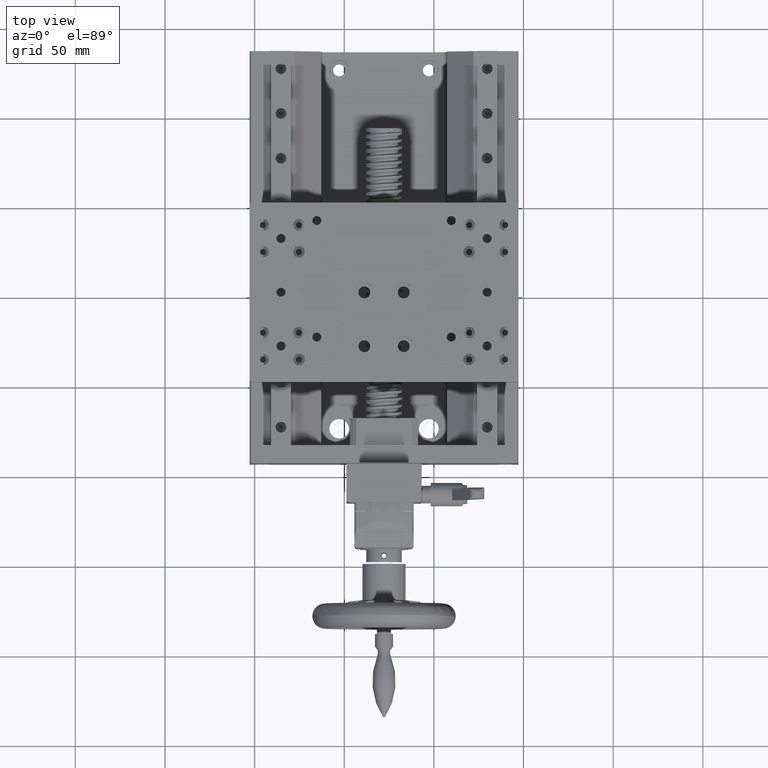
[diagram: clean part render]
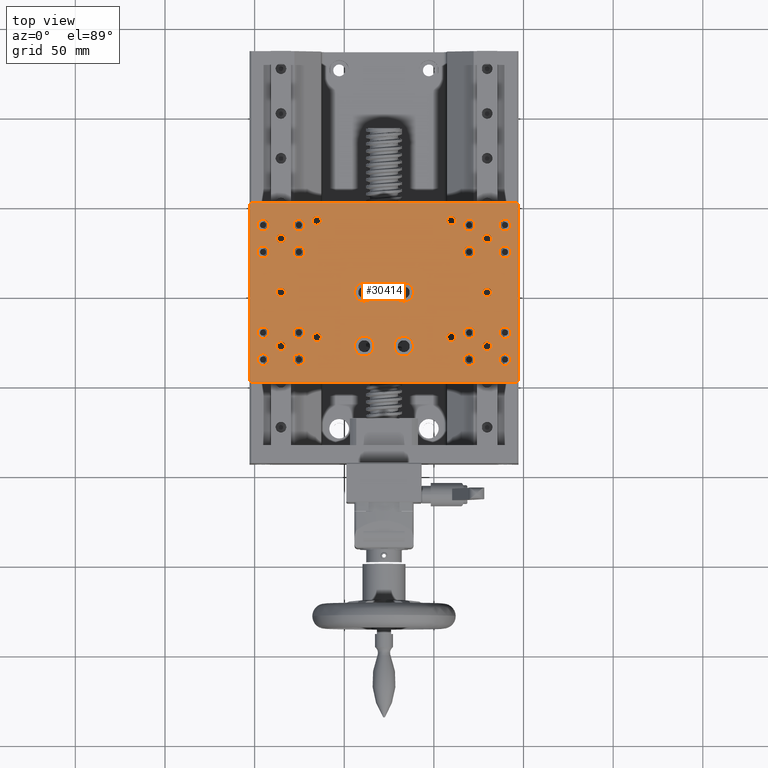
[diagram: same view with one face highlighted and labeled with its STEP entity id]
A machine part, top view. The second image highlights one B-rep face of the part: STEP entity #30414.
In plain terms, the highlighted planar face has unit normal (0, 0, 1).
Its self-contained STEP definition (entity closure, byte-faithful):
#92 = VERTEX_POINT ( 'NONE', #20707 ) ;
#177 = EDGE_CURVE ( 'NONE', #23864, #3393, #12563, .T. ) ;
#182 = CIRCLE ( 'NONE', #13025, 3.250000000000002665 ) ;
#252 = AXIS2_PLACEMENT_3D ( 'NONE', #22201, #3158, #27798 ) ;
#334 = CIRCLE ( 'NONE', #21937, 5.499999999999991118 ) ;
#411 = ORIENTED_EDGE ( 'NONE', *, *, #23644, .T. ) ;
#444 = AXIS2_PLACEMENT_3D ( 'NONE', #793, #34679, #11971 ) ;
#457 = CIRCLE ( 'NONE', #20871, 2.499999999999974243 ) ;
#493 = EDGE_LOOP ( 'NONE', ( #34913, #21037 ) ) ;
#516 = DIRECTION ( 'NONE',  ( 3.452590796308460919E-15, 1.665334536937734318E-16, 1.000000000000000000 ) ) ;
#550 = CIRCLE ( 'NONE', #29101, 3.250000000000002665 ) ;
#569 = CARTESIAN_POINT ( 'NONE',  ( -85.32647947979999969, -15.54726459790860993, 44.50000000000066080 ) ) ;
#588 = DIRECTION ( 'NONE',  ( -4.270088556250598741E-15, -1.000000000000000000, 0.000000000000000000 ) ) ;
#647 = DIRECTION ( 'NONE',  ( -3.452590796308460919E-15, -1.665334536937734318E-16, -1.000000000000000000 ) ) ;
#652 = CARTESIAN_POINT ( 'NONE',  ( 29.67352052019977648, -78.04726459790897763, 44.50000000000028422 ) ) ;
#705 = AXIS2_PLACEMENT_3D ( 'NONE', #3784, #6902, #18039 ) ;
#737 = EDGE_CURVE ( 'NONE', #1396, #1171, #822, .T. ) ;
#753 = EDGE_LOOP ( 'NONE', ( #14878, #26463 ) ) ;
#783 = EDGE_CURVE ( 'NONE', #22916, #17105, #4912, .T. ) ;
#793 = CARTESIAN_POINT ( 'NONE',  ( -95.32647947980005654, -25.54726459790854776, 44.50000000000070344 ) ) ;
#815 = EDGE_CURVE ( 'NONE', #6802, #24983, #25304, .T. ) ;
#822 = CIRCLE ( 'NONE', #11927, 2.499999999999974243 ) ;
#931 = CARTESIAN_POINT ( 'NONE',  ( -16.82647947980011338, -42.54726459790883553, 44.50000000000044054 ) ) ;
#1026 = DIRECTION ( 'NONE',  ( -3.452590796308460919E-15, -1.665334536937734318E-16, -1.000000000000000000 ) ) ;
#1037 = EDGE_LOOP ( 'NONE', ( #27544, #26277 ) ) ;
#1085 = VERTEX_POINT ( 'NONE', #2914 ) ;
#1105 = CIRCLE ( 'NONE', #18612, 2.499999999999974243 ) ;
#1130 = ORIENTED_EDGE ( 'NONE', *, *, #12414, .F. ) ;
#1137 = CARTESIAN_POINT ( 'NONE',  ( 39.67352052019978714, -70.54726459790900606, 44.50000000000024869 ) ) ;
#1171 = VERTEX_POINT ( 'NONE', #22650 ) ;
#1215 = DIRECTION ( 'NONE',  ( 3.452590796308460919E-15, 1.665334536937734318E-16, 1.000000000000000000 ) ) ;
#1288 = ORIENTED_EDGE ( 'NONE', *, *, #27860, .T. ) ;
#1301 = LINE ( 'NONE', #32095, #18492 ) ;
#1309 = VERTEX_POINT ( 'NONE', #569 ) ;
#1396 = VERTEX_POINT ( 'NONE', #6072 ) ;
#1463 = ORIENTED_EDGE ( 'NONE', *, *, #7274, .T. ) ;
#1519 = DIRECTION ( 'NONE',  ( -3.784851220313044991E-15, -1.000000000000000000, 0.000000000000000000 ) ) ;
#1538 = CIRCLE ( 'NONE', #33512, 3.250000000000002665 ) ;
#1568 = ORIENTED_EDGE ( 'NONE', *, *, #19232, .F. ) ;
#1689 = DIRECTION ( 'NONE',  ( 3.486929317224867175E-15, 1.000000000000000000, -1.665334536937734811E-16 ) ) ;
#1735 = AXIS2_PLACEMENT_3D ( 'NONE', #8753, #30933, #11133 ) ;
#1768 = DIRECTION ( 'NONE',  ( 5.551115123125840289E-15, 1.000000000000000000, 0.000000000000000000 ) ) ;
#1957 = CARTESIAN_POINT ( 'NONE',  ( -85.32647947980001391, -18.04726459790858328, 44.50000000000066080 ) ) ;
#2057 = EDGE_LOOP ( 'NONE', ( #11082, #25567 ) ) ;
#2058 = DIRECTION ( 'NONE',  ( 3.452590796308460919E-15, 1.665334536937734318E-16, 1.000000000000000000 ) ) ;
#2069 = CARTESIAN_POINT ( 'NONE',  ( -75.32647947980019865, -70.54726459790860815, 44.50000000000064659 ) ) ;
#2088 = FACE_BOUND ( 'NONE', #12474, .T. ) ;
#2097 = AXIS2_PLACEMENT_3D ( 'NONE', #1957, #7636, #1768 ) ;
#2102 = ORIENTED_EDGE ( 'NONE', *, *, #35415, .T. ) ;
#2106 = DIRECTION ( 'NONE',  ( 3.469446951953650082E-15, 1.000000000000000000, 0.000000000000000000 ) ) ;
#2176 = EDGE_CURVE ( 'NONE', #29140, #26174, #334, .T. ) ;
#2178 = CARTESIAN_POINT ( 'NONE',  ( 39.67352052020000031, -10.54726459790902204, 44.50000000000024158 ) ) ;
#2192 = CIRCLE ( 'NONE', #4499, 2.499999999999974243 ) ;
#2252 = AXIS2_PLACEMENT_3D ( 'NONE', #24468, #32430, #7118 ) ;
#2324 = DIRECTION ( 'NONE',  ( -3.486929317224867175E-15, -1.000000000000000000, 1.665334536937734811E-16 ) ) ;
#2579 = AXIS2_PLACEMENT_3D ( 'NONE', #14777, #15465, #28252 ) ;
#2625 = EDGE_CURVE ( 'NONE', #7215, #9361, #31210, .T. ) ;
#2670 = CIRCLE ( 'NONE', #2097, 2.499999999999974243 ) ;
#2721 = CARTESIAN_POINT ( 'NONE',  ( -65.32647947980021286, -73.04726459790865079, 44.50000000000060396 ) ) ;
#2731 = CARTESIAN_POINT ( 'NONE',  ( -75.32647947980004233, -25.54726459790861881, 44.50000000000063949 ) ) ;
#2803 = EDGE_CURVE ( 'NONE', #23562, #18090, #30074, .T. ) ;
#2845 = CIRCLE ( 'NONE', #444, 3.250000000000002665 ) ;
#2914 = CARTESIAN_POINT ( 'NONE',  ( 29.67352052019989372, -45.54726459790901316, 44.50000000000027711 ) ) ;
#3037 = CARTESIAN_POINT ( 'NONE',  ( -38.82647947980021286, -72.54726459790875026, 44.50000000000051870 ) ) ;
#3094 = LINE ( 'NONE', #31159, #22961 ) ;
#3111 = AXIS2_PLACEMENT_3D ( 'NONE', #19343, #22795, #8383 ) ;
#3158 = DIRECTION ( 'NONE',  ( 3.452590796308460919E-15, 1.665334536937734318E-16, 1.000000000000000000 ) ) ;
#3193 = CIRCLE ( 'NONE', #7895, 3.250000000000002665 ) ;
#3230 = DIRECTION ( 'NONE',  ( -1.000000000000000000, 3.478907848654647380E-15, 3.420639147677696500E-15 ) ) ;
#3245 = EDGE_CURVE ( 'NONE', #16515, #15100, #5581, .T. ) ;
#3262 = CARTESIAN_POINT ( 'NONE',  ( -102.8264794798002981, -97.04726459319657295, 44.50000000000073896 ) ) ;
#3263 = EDGE_LOOP ( 'NONE', ( #35372, #4449 ) ) ;
#3301 = DIRECTION ( 'NONE',  ( 3.452590796308460919E-15, 1.665334536937734318E-16, 1.000000000000000000 ) ) ;
#3368 = ORIENTED_EDGE ( 'NONE', *, *, #11756, .F. ) ;
#3393 = VERTEX_POINT ( 'NONE', #11022 ) ;
#3399 = CARTESIAN_POINT ( 'NONE',  ( 39.67352052019996478, -22.29726459790901316, 44.50000000000024158 ) ) ;
#3519 = CARTESIAN_POINT ( 'NONE',  ( -85.32647947980026970, -80.54726459790856552, 44.50000000000066791 ) ) ;
#3755 = DIRECTION ( 'NONE',  ( 3.452590796308460919E-15, 1.665334536937734318E-16, 1.000000000000000000 ) ) ;
#3784 = CARTESIAN_POINT ( 'NONE',  ( -75.32647947979999969, -10.54726459790861881, 44.50000000000063949 ) ) ;
#3814 = CARTESIAN_POINT ( 'NONE',  ( -16.82647947980012049, -48.04726459790882132, 44.50000000000044054 ) ) ;
#3864 = ORIENTED_EDGE ( 'NONE', *, *, #16947, .F. ) ;
#3959 = CARTESIAN_POINT ( 'NONE',  ( -95.32647947980002812, -13.79726459790855309, 44.50000000000069633 ) ) ;
#3974 = VERTEX_POINT ( 'NONE', #10984 ) ;
#4013 = EDGE_CURVE ( 'NONE', #23818, #14882, #1105, .T. ) ;
#4166 = DIRECTION ( 'NONE',  ( 3.452590796308460919E-15, 1.665334536937734318E-16, 1.000000000000000000 ) ) ;
#4279 = ORIENTED_EDGE ( 'NONE', *, *, #11538, .F. ) ;
#4306 = CARTESIAN_POINT ( 'NONE',  ( -38.82647947980024838, -83.54726459790873605, 44.50000000000051870 ) ) ;
#4392 = DIRECTION ( 'NONE',  ( 3.452590796308460919E-15, 1.665334536937734318E-16, 1.000000000000000000 ) ) ;
#4424 = VERTEX_POINT ( 'NONE', #14141 ) ;
#4449 = ORIENTED_EDGE ( 'NONE', *, *, #5882, .F. ) ;
#4456 = FACE_BOUND ( 'NONE', #15972, .T. ) ;
#4499 = AXIS2_PLACEMENT_3D ( 'NONE', #2721, #27703, #27345 ) ;
#4531 = VECTOR ( 'NONE', #3230, 1000.000000000000000 ) ;
#4716 = EDGE_CURVE ( 'NONE', #7270, #25283, #550, .T. ) ;
#4837 = ORIENTED_EDGE ( 'NONE', *, *, #14957, .F. ) ;
#4894 = AXIS2_PLACEMENT_3D ( 'NONE', #10717, #32914, #19140 ) ;
#4912 = CIRCLE ( 'NONE', #12517, 2.499999999999974243 ) ;
#4993 = CARTESIAN_POINT ( 'NONE',  ( -75.32647947979998548, -7.297264597908616146, 44.50000000000063949 ) ) ;
#5013 = FACE_BOUND ( 'NONE', #753, .T. ) ;
#5044 = CARTESIAN_POINT ( 'NONE',  ( -65.32647947979997127, -5.547264597908677430, 44.50000000000059686 ) ) ;
#5177 = CARTESIAN_POINT ( 'NONE',  ( 39.67352052019978714, -70.54726459790900606, 44.50000000000024869 ) ) ;
#5200 = DIRECTION ( 'NONE',  ( 3.452590796308460919E-15, 1.665334536937734318E-16, 1.000000000000000000 ) ) ;
#5203 = AXIS2_PLACEMENT_3D ( 'NONE', #9914, #17574, #34094 ) ;
#5214 = FACE_OUTER_BOUND ( 'NONE', #11031, .T. ) ;
#5386 = DIRECTION ( 'NONE',  ( 0.7071067811865500152, 0.7071067811865451302, -2.536514071716354973E-15 ) ) ;
#5470 = DIRECTION ( 'NONE',  ( 0.7071067811865451302, -0.7071067811865500152, -2.301000202913787996E-15 ) ) ;
#5499 = EDGE_CURVE ( 'NONE', #15195, #21919, #20451, .T. ) ;
#5536 = DIRECTION ( 'NONE',  ( -4.270088556250598741E-15, -1.000000000000000000, 0.000000000000000000 ) ) ;
#5581 = CIRCLE ( 'NONE', #14887, 5.499999999999984013 ) ;
#5734 = ORIENTED_EDGE ( 'NONE', *, *, #31265, .F. ) ;
#5797 = AXIS2_PLACEMENT_3D ( 'NONE', #28528, #31414, #29224 ) ;
#5831 = CARTESIAN_POINT ( 'NONE',  ( 47.17352052020003583, 0.9527353973790078090, 44.50000000000021316 ) ) ;
#5882 = EDGE_CURVE ( 'NONE', #9361, #7215, #9276, .T. ) ;
#6072 = CARTESIAN_POINT ( 'NONE',  ( 29.67352052019975162, -80.54726459790894921, 44.50000000000028422 ) ) ;
#6136 = VERTEX_POINT ( 'NONE', #3262 ) ;
#6144 = EDGE_CURVE ( 'NONE', #1085, #8797, #457, .T. ) ;
#6229 = DIRECTION ( 'NONE',  ( -0.7071067811865500152, -0.7071067811865451302, 2.536514071716354973E-15 ) ) ;
#6252 = DIRECTION ( 'NONE',  ( -4.270088556250598741E-15, -1.000000000000000000, 0.000000000000000000 ) ) ;
#6510 = ORIENTED_EDGE ( 'NONE', *, *, #737, .T. ) ;
#6545 = CARTESIAN_POINT ( 'NONE',  ( 39.67352052020000741, -7.297264597909018491, 44.50000000000024158 ) ) ;
#6776 = DIRECTION ( 'NONE',  ( -4.270088556250598741E-15, -1.000000000000000000, 0.000000000000000000 ) ) ;
#6802 = VERTEX_POINT ( 'NONE', #33847 ) ;
#6902 = DIRECTION ( 'NONE',  ( 3.452590796308460919E-15, 1.665334536937734318E-16, 1.000000000000000000 ) ) ;
#6918 = AXIS2_PLACEMENT_3D ( 'NONE', #25738, #3301, #6252 ) ;
#6979 = AXIS2_PLACEMENT_3D ( 'NONE', #10169, #20945, #7062 ) ;
#7009 = CARTESIAN_POINT ( 'NONE',  ( -75.32647947980025549, -85.54726459790862236, 44.50000000000065370 ) ) ;
#7062 = DIRECTION ( 'NONE',  ( 5.551115123125840289E-15, 1.000000000000000000, 0.000000000000000000 ) ) ;
#7118 = DIRECTION ( 'NONE',  ( 4.163336342344379625E-15, 1.000000000000000000, 0.000000000000000000 ) ) ;
#7205 = AXIS2_PLACEMENT_3D ( 'NONE', #33560, #25244, #588 ) ;
#7208 = EDGE_LOOP ( 'NONE', ( #30131, #10266 ) ) ;
#7209 = LINE ( 'NONE', #12532, #4531 ) ;
#7211 = EDGE_CURVE ( 'NONE', #31684, #92, #23894, .T. ) ;
#7215 = VERTEX_POINT ( 'NONE', #4306 ) ;
#7227 = CARTESIAN_POINT ( 'NONE',  ( -75.32647947980005654, -28.79726459790862236, 44.50000000000063949 ) ) ;
#7270 = VERTEX_POINT ( 'NONE', #35090 ) ;
#7274 = EDGE_CURVE ( 'NONE', #1309, #8134, #31983, .T. ) ;
#7302 = DIRECTION ( 'NONE',  ( -4.270088556250598741E-15, -1.000000000000000000, 0.000000000000000000 ) ) ;
#7394 = FACE_BOUND ( 'NONE', #33530, .T. ) ;
#7494 = AXIS2_PLACEMENT_3D ( 'NONE', #32213, #16043, #27124 ) ;
#7497 = CARTESIAN_POINT ( 'NONE',  ( 39.67352052019977293, -73.79726459790902027, 44.50000000000024869 ) ) ;
#7636 = DIRECTION ( 'NONE',  ( -3.452590796308460919E-15, -1.665334536937734318E-16, -1.000000000000000000 ) ) ;
#7650 = CARTESIAN_POINT ( 'NONE',  ( 29.67352052019996123, -20.54726459790895632, 44.50000000000027001 ) ) ;
#7757 = PLANE ( 'NONE',  #31416 ) ;
#7796 = EDGE_CURVE ( 'NONE', #4424, #8289, #27966, .T. ) ;
#7820 = AXIS2_PLACEMENT_3D ( 'NONE', #2178, #10044, #7302 ) ;
#7895 = AXIS2_PLACEMENT_3D ( 'NONE', #16980, #33495, #17337 ) ;
#7930 = CIRCLE ( 'NONE', #26548, 2.499999999999974243 ) ;
#7941 = DIRECTION ( 'NONE',  ( 3.452590796308460919E-15, 1.665334536937614509E-16, 1.000000000000000000 ) ) ;
#7949 = EDGE_CURVE ( 'NONE', #19550, #11981, #14871, .T. ) ;
#7954 = EDGE_CURVE ( 'NONE', #22725, #32009, #35774, .T. ) ;
#7981 = CARTESIAN_POINT ( 'NONE',  ( -101.8264794750879929, 1.952735402091475336, 44.50000000000071765 ) ) ;
#8029 = VERTEX_POINT ( 'NONE', #3399 ) ;
#8132 = CARTESIAN_POINT ( 'NONE',  ( 39.67352052019995767, -25.54726459790901671, 44.50000000000024158 ) ) ;
#8134 = VERTEX_POINT ( 'NONE', #35264 ) ;
#8154 = CARTESIAN_POINT ( 'NONE',  ( 39.67352052020000031, -10.54726459790902204, 44.50000000000024158 ) ) ;
#8214 = VERTEX_POINT ( 'NONE', #7227 ) ;
#8289 = VERTEX_POINT ( 'NONE', #5044 ) ;
#8326 = CIRCLE ( 'NONE', #705, 3.250000000000002665 ) ;
#8369 = CARTESIAN_POINT ( 'NONE',  ( 9.673520520199796024, -70.54726459790894921, 44.50000000000034817 ) ) ;
#8383 = DIRECTION ( 'NONE',  ( -3.202566417187948859E-15, -1.000000000000000000, 0.000000000000000000 ) ) ;
#8614 = ORIENTED_EDGE ( 'NONE', *, *, #25411, .T. ) ;
#8687 = DIRECTION ( 'NONE',  ( 3.452590796308460919E-15, 1.665334536937734318E-16, 1.000000000000000000 ) ) ;
#8714 = CARTESIAN_POINT ( 'NONE',  ( 29.67352052019999675, -15.54726459790900783, 44.50000000000027001 ) ) ;
#8753 = CARTESIAN_POINT ( 'NONE',  ( 9.673520520199787143, -73.04726459790892079, 44.50000000000034817 ) ) ;
#8797 = VERTEX_POINT ( 'NONE', #10612 ) ;
#8809 = DIRECTION ( 'NONE',  ( 3.452590796308460919E-15, 1.665334536937734318E-16, 1.000000000000000000 ) ) ;
#8841 = EDGE_CURVE ( 'NONE', #20768, #8214, #18466, .T. ) ;
#8901 = CARTESIAN_POINT ( 'NONE',  ( -38.82647947980012049, -48.04726459790875026, 44.50000000000051159 ) ) ;
#8973 = ORIENTED_EDGE ( 'NONE', *, *, #7796, .T. ) ;
#9130 = EDGE_CURVE ( 'NONE', #30317, #13504, #14404, .T. ) ;
#9276 = CIRCLE ( 'NONE', #13945, 5.499999999999991118 ) ;
#9315 = VERTEX_POINT ( 'NONE', #22415 ) ;
#9361 = VERTEX_POINT ( 'NONE', #3037 ) ;
#9407 = EDGE_LOOP ( 'NONE', ( #23735, #1568 ) ) ;
#9434 = CIRCLE ( 'NONE', #25736, 2.499999999999974243 ) ;
#9468 = DIRECTION ( 'NONE',  ( -4.270088556250598741E-15, -1.000000000000000000, 0.000000000000000000 ) ) ;
#9472 = VERTEX_POINT ( 'NONE', #8369 ) ;
#9576 = EDGE_LOOP ( 'NONE', ( #3368, #33699 ) ) ;
#9638 = AXIS2_PLACEMENT_3D ( 'NONE', #27440, #22027, #2106 ) ;
#9738 = EDGE_LOOP ( 'NONE', ( #1463, #29330 ) ) ;
#9746 = LINE ( 'NONE', #26505, #31574 ) ;
#9911 = CARTESIAN_POINT ( 'NONE',  ( 19.67352052020001452, -7.297264597908949213, 44.50000000000030553 ) ) ;
#9914 = CARTESIAN_POINT ( 'NONE',  ( 19.67352052019995767, -25.54726459790894921, 44.50000000000031264 ) ) ;
#9933 = EDGE_CURVE ( 'NONE', #34446, #14693, #1301, .T. ) ;
#9950 = EDGE_LOOP ( 'NONE', ( #26135, #32631 ) ) ;
#9959 = AXIS2_PLACEMENT_3D ( 'NONE', #2069, #13223, #24350 ) ;
#10044 = DIRECTION ( 'NONE',  ( 3.452590796308460919E-15, 1.665334536937734318E-16, 1.000000000000000000 ) ) ;
#10058 = DIRECTION ( 'NONE',  ( 5.551115123125840289E-15, 1.000000000000000000, 0.000000000000000000 ) ) ;
#10125 = VERTEX_POINT ( 'NONE', #25919 ) ;
#10132 = FACE_BOUND ( 'NONE', #9738, .T. ) ;
#10169 = CARTESIAN_POINT ( 'NONE',  ( -85.32647947980001391, -18.04726459790858328, 44.50000000000066080 ) ) ;
#10171 = EDGE_CURVE ( 'NONE', #21521, #10363, #10422, .T. ) ;
#10212 = AXIS2_PLACEMENT_3D ( 'NONE', #12811, #34612, #17911 ) ;
#10214 = DIRECTION ( 'NONE',  ( 3.452590796308460919E-15, 1.665334536937734318E-16, 1.000000000000000000 ) ) ;
#10266 = ORIENTED_EDGE ( 'NONE', *, *, #2176, .F. ) ;
#10317 = FACE_BOUND ( 'NONE', #33494, .T. ) ;
#10363 = VERTEX_POINT ( 'NONE', #16634 ) ;
#10366 = EDGE_LOOP ( 'NONE', ( #25222, #22710 ) ) ;
#10422 = CIRCLE ( 'NONE', #6918, 3.250000000000002665 ) ;
#10503 = FACE_BOUND ( 'NONE', #31018, .T. ) ;
#10612 = CARTESIAN_POINT ( 'NONE',  ( 29.67352052019985820, -50.54726459790896342, 44.50000000000027711 ) ) ;
#10622 = VERTEX_POINT ( 'NONE', #7981 ) ;
#10646 = DIRECTION ( 'NONE',  ( -3.202566417187948859E-15, -1.000000000000000000, 0.000000000000000000 ) ) ;
#10658 = EDGE_CURVE ( 'NONE', #21247, #15374, #13936, .T. ) ;
#10671 = FACE_BOUND ( 'NONE', #22219, .T. ) ;
#10704 = ORIENTED_EDGE ( 'NONE', *, *, #6144, .T. ) ;
#10717 = CARTESIAN_POINT ( 'NONE',  ( -75.32647947980004233, -25.54726459790861881, 44.50000000000063949 ) ) ;
#10742 = CARTESIAN_POINT ( 'NONE',  ( -38.82647947980022707, -78.04726459790873605, 44.50000000000051870 ) ) ;
#10762 = EDGE_CURVE ( 'NONE', #18089, #24457, #19770, .T. ) ;
#10805 = CIRCLE ( 'NONE', #32358, 3.250000000000002665 ) ;
#10817 = EDGE_CURVE ( 'NONE', #3393, #23864, #2845, .T. ) ;
#10917 = AXIS2_PLACEMENT_3D ( 'NONE', #652, #11465, #28557 ) ;
#10984 = CARTESIAN_POINT ( 'NONE',  ( -95.32647947980022707, -73.79726459790855131, 44.50000000000071054 ) ) ;
#11022 = CARTESIAN_POINT ( 'NONE',  ( -95.32647947980005654, -22.29726459790854776, 44.50000000000070344 ) ) ;
#11031 = EDGE_LOOP ( 'NONE', ( #14727, #1288, #21355, #18777, #411, #17528, #26175, #8614 ) ) ;
#11048 = DIRECTION ( 'NONE',  ( -4.270088556250598741E-15, -1.000000000000000000, 0.000000000000000000 ) ) ;
#11062 = ORIENTED_EDGE ( 'NONE', *, *, #32868, .T. ) ;
#11064 = CARTESIAN_POINT ( 'NONE',  ( -38.82647947980014180, -53.54726459790873605, 44.50000000000051159 ) ) ;
#11082 = ORIENTED_EDGE ( 'NONE', *, *, #177, .F. ) ;
#11113 = DIRECTION ( 'NONE',  ( 3.452590796308460919E-15, 1.665334536937734318E-16, 1.000000000000000000 ) ) ;
#11133 = DIRECTION ( 'NONE',  ( 3.469446951953650082E-15, 1.000000000000000000, 0.000000000000000000 ) ) ;
#11270 = EDGE_CURVE ( 'NONE', #24983, #6802, #30183, .T. ) ;
#11291 = CARTESIAN_POINT ( 'NONE',  ( -95.32647947980021286, -70.54726459790855131, 44.50000000000071054 ) ) ;
#11381 = CIRCLE ( 'NONE', #9638, 2.499999999999974243 ) ;
#11400 = CARTESIAN_POINT ( 'NONE',  ( 29.67352052019988307, -48.04726459790898474, 44.50000000000027711 ) ) ;
#11414 = CIRCLE ( 'NONE', #15505, 3.250000000000002665 ) ;
#11465 = DIRECTION ( 'NONE',  ( -3.452590796308460919E-15, -1.665334536937734318E-16, -1.000000000000000000 ) ) ;
#11538 = EDGE_CURVE ( 'NONE', #92, #31684, #23283, .T. ) ;
#11560 = AXIS2_PLACEMENT_3D ( 'NONE', #26060, #20784, #26413 ) ;
#11604 = CIRCLE ( 'NONE', #5203, 3.250000000000002665 ) ;
#11660 = AXIS2_PLACEMENT_3D ( 'NONE', #34735, #1215, #28920 ) ;
#11756 = EDGE_CURVE ( 'NONE', #10125, #23287, #1538, .T. ) ;
#11759 = VERTEX_POINT ( 'NONE', #4993 ) ;
#11779 = CARTESIAN_POINT ( 'NONE',  ( -75.32647947980002812, -22.29726459790861526, 44.50000000000063949 ) ) ;
#11824 = AXIS2_PLACEMENT_3D ( 'NONE', #5177, #18683, #16314 ) ;
#11842 = VERTEX_POINT ( 'NONE', #35035 ) ;
#11860 = EDGE_CURVE ( 'NONE', #24457, #18089, #11381, .T. ) ;
#11927 = AXIS2_PLACEMENT_3D ( 'NONE', #33848, #12065, #25540 ) ;
#11971 = DIRECTION ( 'NONE',  ( -4.270088556250598741E-15, -1.000000000000000000, 0.000000000000000000 ) ) ;
#11981 = VERTEX_POINT ( 'NONE', #11064 ) ;
#11985 = EDGE_LOOP ( 'NONE', ( #10704, #14368 ) ) ;
#12008 = CARTESIAN_POINT ( 'NONE',  ( 19.67352052019980491, -70.54726459790894921, 44.50000000000031974 ) ) ;
#12019 = DIRECTION ( 'NONE',  ( -3.784851220313039469E-15, -1.000000000000000000, 0.000000000000000000 ) ) ;
#12065 = DIRECTION ( 'NONE',  ( -3.452590796308460919E-15, -1.665334536937734318E-16, -1.000000000000000000 ) ) ;
#12093 = CARTESIAN_POINT ( 'NONE',  ( -95.32647947980007075, -28.79726459790855131, 44.50000000000070344 ) ) ;
#12371 = AXIS2_PLACEMENT_3D ( 'NONE', #27115, #26814, #10058 ) ;
#12414 = EDGE_CURVE ( 'NONE', #8029, #24584, #11414, .T. ) ;
#12474 = EDGE_LOOP ( 'NONE', ( #12787, #3864 ) ) ;
#12517 = AXIS2_PLACEMENT_3D ( 'NONE', #29273, #22645, #18378 ) ;
#12532 = CARTESIAN_POINT ( 'NONE',  ( 47.17352052020004294, 1.952735402090961747, 44.50000000000021316 ) ) ;
#12563 = CIRCLE ( 'NONE', #30577, 3.250000000000002665 ) ;
#12787 = ORIENTED_EDGE ( 'NONE', *, *, #21388, .F. ) ;
#12811 = CARTESIAN_POINT ( 'NONE',  ( -65.32647947979998548, -8.047264597908650785, 44.50000000000059686 ) ) ;
#12870 = CIRCLE ( 'NONE', #29111, 3.250000000000002665 ) ;
#12877 = FACE_BOUND ( 'NONE', #7208, .T. ) ;
#13025 = AXIS2_PLACEMENT_3D ( 'NONE', #24521, #35574, #10646 ) ;
#13073 = CIRCLE ( 'NONE', #7820, 3.250000000000002665 ) ;
#13097 = DIRECTION ( 'NONE',  ( -3.452590796308460919E-15, -1.665334536937734318E-16, -1.000000000000000000 ) ) ;
#13223 = DIRECTION ( 'NONE',  ( 3.452590796308460919E-15, 1.665334536937734318E-16, 1.000000000000000000 ) ) ;
#13244 = FACE_BOUND ( 'NONE', #10366, .T. ) ;
#13451 = CARTESIAN_POINT ( 'NONE',  ( 9.673520520200025175, -5.547264597908940331, 44.50000000000034106 ) ) ;
#13504 = VERTEX_POINT ( 'NONE', #14855 ) ;
#13614 = EDGE_CURVE ( 'NONE', #25283, #7270, #182, .T. ) ;
#13636 = VERTEX_POINT ( 'NONE', #27933 ) ;
#13637 = CIRCLE ( 'NONE', #7205, 3.250000000000002665 ) ;
#13661 = CIRCLE ( 'NONE', #3111, 3.250000000000002665 ) ;
#13736 = DIRECTION ( 'NONE',  ( 1.000000000000000000, -3.478907848654647380E-15, -3.420639147677696500E-15 ) ) ;
#13879 = CIRCLE ( 'NONE', #11560, 3.250000000000002665 ) ;
#13893 = DIRECTION ( 'NONE',  ( 3.452590796308460919E-15, 1.665334536937734318E-16, 1.000000000000000000 ) ) ;
#13936 = CIRCLE ( 'NONE', #27306, 3.250000000000002665 ) ;
#13945 = AXIS2_PLACEMENT_3D ( 'NONE', #29360, #4392, #15558 ) ;
#14079 = EDGE_CURVE ( 'NONE', #11759, #29607, #8326, .T. ) ;
#14116 = EDGE_LOOP ( 'NONE', ( #24121, #16871 ) ) ;
#14141 = CARTESIAN_POINT ( 'NONE',  ( -65.32647947980001391, -10.54726459790862592, 44.50000000000059686 ) ) ;
#14315 = CIRCLE ( 'NONE', #25925, 2.499999999999974243 ) ;
#14350 = EDGE_CURVE ( 'NONE', #29832, #26381, #15291, .T. ) ;
#14368 = ORIENTED_EDGE ( 'NONE', *, *, #30989, .T. ) ;
#14404 = CIRCLE ( 'NONE', #20807, 3.250000000000002665 ) ;
#14591 = CARTESIAN_POINT ( 'NONE',  ( -16.82647947980022707, -78.04726459790882132, 44.50000000000044054 ) ) ;
#14693 = VERTEX_POINT ( 'NONE', #35113 ) ;
#14727 = ORIENTED_EDGE ( 'NONE', *, *, #14767, .T. ) ;
#14767 = EDGE_CURVE ( 'NONE', #34963, #6136, #18971, .T. ) ;
#14777 = CARTESIAN_POINT ( 'NONE',  ( 19.67352052019974806, -85.54726459790896342, 44.50000000000031974 ) ) ;
#14855 = CARTESIAN_POINT ( 'NONE',  ( 19.67352052019995767, -22.29726459790894566, 44.50000000000031264 ) ) ;
#14871 = CIRCLE ( 'NONE', #29975, 5.499999999999984013 ) ;
#14878 = ORIENTED_EDGE ( 'NONE', *, *, #26944, .F. ) ;
#14882 = VERTEX_POINT ( 'NONE', #18546 ) ;
#14887 = AXIS2_PLACEMENT_3D ( 'NONE', #26337, #26521, #1519 ) ;
#14957 = EDGE_CURVE ( 'NONE', #11981, #19550, #16021, .T. ) ;
#15094 = DIRECTION ( 'NONE',  ( 5.551115123125840289E-15, 1.000000000000000000, 0.000000000000000000 ) ) ;
#15100 = VERTEX_POINT ( 'NONE', #28512 ) ;
#15195 = VERTEX_POINT ( 'NONE', #15403 ) ;
#15272 = ORIENTED_EDGE ( 'NONE', *, *, #15592, .T. ) ;
#15291 = CIRCLE ( 'NONE', #11824, 3.250000000000002665 ) ;
#15318 = DIRECTION ( 'NONE',  ( -3.202566417187948859E-15, -1.000000000000000000, 0.000000000000000000 ) ) ;
#15374 = VERTEX_POINT ( 'NONE', #6545 ) ;
#15403 = CARTESIAN_POINT ( 'NONE',  ( -75.32647947980021286, -73.79726459790860815, 44.50000000000064659 ) ) ;
#15465 = DIRECTION ( 'NONE',  ( 3.452590796308460919E-15, 1.665334536937734318E-16, 1.000000000000000000 ) ) ;
#15505 = AXIS2_PLACEMENT_3D ( 'NONE', #33710, #8809, #5536 ) ;
#15520 = ORIENTED_EDGE ( 'NONE', *, *, #4013, .T. ) ;
#15553 = AXIS2_PLACEMENT_3D ( 'NONE', #34166, #1026, #15094 ) ;
#15558 = DIRECTION ( 'NONE',  ( -3.784851220313039469E-15, -1.000000000000000000, 0.000000000000000000 ) ) ;
#15564 = AXIS2_PLACEMENT_3D ( 'NONE', #2731, #13893, #21741 ) ;
#15592 = EDGE_CURVE ( 'NONE', #25775, #9472, #14315, .T. ) ;
#15619 = FACE_BOUND ( 'NONE', #21483, .T. ) ;
#15920 = ORIENTED_EDGE ( 'NONE', *, *, #11860, .T. ) ;
#15972 = EDGE_LOOP ( 'NONE', ( #24455, #8973 ) ) ;
#16021 = CIRCLE ( 'NONE', #252, 5.499999999999984013 ) ;
#16043 = DIRECTION ( 'NONE',  ( 3.452590796308460919E-15, 1.665334536937734318E-16, 1.000000000000000000 ) ) ;
#16165 = CARTESIAN_POINT ( 'NONE',  ( -27.82647947980012049, -48.04726459790878579, 44.50000000000047606 ) ) ;
#16314 = DIRECTION ( 'NONE',  ( -4.270088556250598741E-15, -1.000000000000000000, 0.000000000000000000 ) ) ;
#16494 = EDGE_LOOP ( 'NONE', ( #4279, #33954 ) ) ;
#16515 = VERTEX_POINT ( 'NONE', #931 ) ;
#16596 = VECTOR ( 'NONE', #2324, 1000.000000000000000 ) ;
#16634 = CARTESIAN_POINT ( 'NONE',  ( -95.32647947979999969, -7.297264597908546868, 44.50000000000069633 ) ) ;
#16699 = EDGE_LOOP ( 'NONE', ( #15920, #35869 ) ) ;
#16715 = CARTESIAN_POINT ( 'NONE',  ( -85.32647947980022707, -78.04726459790859394, 44.50000000000066791 ) ) ;
#16844 = CARTESIAN_POINT ( 'NONE',  ( -85.32647947980011338, -45.54726459790860815, 44.50000000000066080 ) ) ;
#16871 = ORIENTED_EDGE ( 'NONE', *, *, #18478, .F. ) ;
#16932 = CARTESIAN_POINT ( 'NONE',  ( -16.82647947980021996, -72.54726459790883553, 44.50000000000044054 ) ) ;
#16947 = EDGE_CURVE ( 'NONE', #25722, #3974, #3193, .T. ) ;
#16980 = CARTESIAN_POINT ( 'NONE',  ( -95.32647947980021286, -70.54726459790855131, 44.50000000000071054 ) ) ;
#17002 = EDGE_CURVE ( 'NONE', #32387, #30243, #10805, .T. ) ;
#17073 = DIRECTION ( 'NONE',  ( 3.452590796308460919E-15, 1.665334536937734318E-16, 1.000000000000000000 ) ) ;
#17105 = VERTEX_POINT ( 'NONE', #7650 ) ;
#17256 = DIRECTION ( 'NONE',  ( -4.270088556250598741E-15, -1.000000000000000000, 0.000000000000000000 ) ) ;
#17337 = DIRECTION ( 'NONE',  ( -4.270088556250598741E-15, -1.000000000000000000, 0.000000000000000000 ) ) ;
#17487 = CARTESIAN_POINT ( 'NONE',  ( -95.32647947980021286, -67.29726459790855131, 44.50000000000071054 ) ) ;
#17528 = ORIENTED_EDGE ( 'NONE', *, *, #9933, .T. ) ;
#17569 = CARTESIAN_POINT ( 'NONE',  ( 39.67352052019973740, -88.79726459790902027, 44.50000000000025580 ) ) ;
#17574 = DIRECTION ( 'NONE',  ( 3.452590796308460919E-15, 1.665334536937734318E-16, 1.000000000000000000 ) ) ;
#17721 = CIRCLE ( 'NONE', #33947, 3.250000000000002665 ) ;
#17911 = DIRECTION ( 'NONE',  ( 5.551115123125840289E-15, 1.000000000000000000, 0.000000000000000000 ) ) ;
#18039 = DIRECTION ( 'NONE',  ( -4.270088556250598741E-15, -1.000000000000000000, 0.000000000000000000 ) ) ;
#18044 = ORIENTED_EDGE ( 'NONE', *, *, #30896, .F. ) ;
#18089 = VERTEX_POINT ( 'NONE', #32522 ) ;
#18090 = VERTEX_POINT ( 'NONE', #26364 ) ;
#18110 = AXIS2_PLACEMENT_3D ( 'NONE', #11400, #28502, #22717 ) ;
#18227 = EDGE_CURVE ( 'NONE', #11842, #28124, #33469, .T. ) ;
#18333 = ORIENTED_EDGE ( 'NONE', *, *, #19419, .T. ) ;
#18378 = DIRECTION ( 'NONE',  ( 4.163336342344379625E-15, 1.000000000000000000, 0.000000000000000000 ) ) ;
#18466 = CIRCLE ( 'NONE', #15564, 3.250000000000002665 ) ;
#18478 = EDGE_CURVE ( 'NONE', #21919, #15195, #20718, .T. ) ;
#18492 = VECTOR ( 'NONE', #29548, 1000.000000000000114 ) ;
#18506 = DIRECTION ( 'NONE',  ( -4.270088556250598741E-15, -1.000000000000000000, 0.000000000000000000 ) ) ;
#18520 = ORIENTED_EDGE ( 'NONE', *, *, #25213, .F. ) ;
#18528 = DIRECTION ( 'NONE',  ( -3.486929317224867175E-15, -1.000000000000000000, 1.665334536937734811E-16 ) ) ;
#18546 = CARTESIAN_POINT ( 'NONE',  ( -85.32647947980015601, -50.54726459790855841, 44.50000000000066080 ) ) ;
#18612 = AXIS2_PLACEMENT_3D ( 'NONE', #34222, #20085, #31502 ) ;
#18633 = CARTESIAN_POINT ( 'NONE',  ( -16.82647947980024483, -83.54726459790882132, 44.50000000000044054 ) ) ;
#18683 = DIRECTION ( 'NONE',  ( 3.452590796308460919E-15, 1.665334536937734318E-16, 1.000000000000000000 ) ) ;
#18777 = ORIENTED_EDGE ( 'NONE', *, *, #34699, .T. ) ;
#18893 = EDGE_CURVE ( 'NONE', #18090, #23562, #2192, .T. ) ;
#18905 = FACE_BOUND ( 'NONE', #22517, .T. ) ;
#18971 = LINE ( 'NONE', #32743, #16596 ) ;
#19025 = CIRCLE ( 'NONE', #26557, 3.250000000000002665 ) ;
#19029 = EDGE_CURVE ( 'NONE', #26174, #29140, #25500, .T. ) ;
#19140 = DIRECTION ( 'NONE',  ( -4.270088556250598741E-15, -1.000000000000000000, 0.000000000000000000 ) ) ;
#19231 = EDGE_CURVE ( 'NONE', #29607, #11759, #28416, .T. ) ;
#19232 = EDGE_CURVE ( 'NONE', #10363, #21521, #13879, .T. ) ;
#19273 = DIRECTION ( 'NONE',  ( 3.452590796308460919E-15, 1.665334536937734318E-16, 1.000000000000000000 ) ) ;
#19336 = EDGE_LOOP ( 'NONE', ( #22342, #22130 ) ) ;
#19343 = CARTESIAN_POINT ( 'NONE',  ( 19.67352052019980491, -70.54726459790894921, 44.50000000000031974 ) ) ;
#19419 = EDGE_CURVE ( 'NONE', #1171, #1396, #27192, .T. ) ;
#19550 = VERTEX_POINT ( 'NONE', #34337 ) ;
#19612 = CARTESIAN_POINT ( 'NONE',  ( 9.673520520199762274, -75.54726459790889237, 44.50000000000034817 ) ) ;
#19770 = CIRCLE ( 'NONE', #5797, 2.499999999999974243 ) ;
#19858 = DIRECTION ( 'NONE',  ( 3.469446951953650082E-15, 1.000000000000000000, 0.000000000000000000 ) ) ;
#19868 = EDGE_CURVE ( 'NONE', #23287, #10125, #19025, .T. ) ;
#20030 = DIRECTION ( 'NONE',  ( -3.452590796308460919E-15, -1.665334536937734318E-16, -1.000000000000000000 ) ) ;
#20085 = DIRECTION ( 'NONE',  ( -3.452590796308460919E-15, -1.665334536937734318E-16, -1.000000000000000000 ) ) ;
#20134 = ORIENTED_EDGE ( 'NONE', *, *, #4716, .F. ) ;
#20220 = DIRECTION ( 'NONE',  ( 3.452590796308460919E-15, 1.665334536937734318E-16, 1.000000000000000000 ) ) ;
#20248 = CARTESIAN_POINT ( 'NONE',  ( 39.67352052019979425, -67.29726459790900606, 44.50000000000024869 ) ) ;
#20258 = CARTESIAN_POINT ( 'NONE',  ( 19.67352052020001096, -10.54726459790895277, 44.50000000000030553 ) ) ;
#20295 = ORIENTED_EDGE ( 'NONE', *, *, #783, .T. ) ;
#20377 = EDGE_LOOP ( 'NONE', ( #5734, #33042 ) ) ;
#20407 = DIRECTION ( 'NONE',  ( 3.452590796308460919E-15, 1.665334536937734318E-16, 1.000000000000000000 ) ) ;
#20451 = CIRCLE ( 'NONE', #9959, 3.250000000000002665 ) ;
#20688 = DIRECTION ( 'NONE',  ( -4.270088556250598741E-15, -1.000000000000000000, 0.000000000000000000 ) ) ;
#20707 = CARTESIAN_POINT ( 'NONE',  ( -95.32647947980026970, -88.79726459790853710, 44.50000000000071054 ) ) ;
#20712 = ORIENTED_EDGE ( 'NONE', *, *, #14350, .F. ) ;
#20718 = CIRCLE ( 'NONE', #28257, 3.250000000000002665 ) ;
#20768 = VERTEX_POINT ( 'NONE', #11779 ) ;
#20784 = DIRECTION ( 'NONE',  ( 3.452590796308460919E-15, 1.665334536937734318E-16, 1.000000000000000000 ) ) ;
#20807 = AXIS2_PLACEMENT_3D ( 'NONE', #34770, #4166, #15318 ) ;
#20871 = AXIS2_PLACEMENT_3D ( 'NONE', #31821, #34725, #20938 ) ;
#20926 = ORIENTED_EDGE ( 'NONE', *, *, #19231, .F. ) ;
#20938 = DIRECTION ( 'NONE',  ( 4.163336342344379625E-15, 1.000000000000000000, 0.000000000000000000 ) ) ;
#20945 = DIRECTION ( 'NONE',  ( -3.452590796308460919E-15, -1.665334536937734318E-16, -1.000000000000000000 ) ) ;
#20949 = CARTESIAN_POINT ( 'NONE',  ( -95.32647947980024128, -82.29726459790853710, 44.50000000000071054 ) ) ;
#21037 = ORIENTED_EDGE ( 'NONE', *, *, #2803, .T. ) ;
#21138 = CARTESIAN_POINT ( 'NONE',  ( -75.32647947979999969, -10.54726459790861881, 44.50000000000063949 ) ) ;
#21247 = VERTEX_POINT ( 'NONE', #21902 ) ;
#21253 = FACE_BOUND ( 'NONE', #493, .T. ) ;
#21346 = ORIENTED_EDGE ( 'NONE', *, *, #14079, .F. ) ;
#21355 = ORIENTED_EDGE ( 'NONE', *, *, #25326, .T. ) ;
#21388 = EDGE_CURVE ( 'NONE', #3974, #25722, #21988, .T. ) ;
#21419 = EDGE_LOOP ( 'NONE', ( #4837, #31078 ) ) ;
#21483 = EDGE_LOOP ( 'NONE', ( #18333, #6510 ) ) ;
#21521 = VERTEX_POINT ( 'NONE', #3959 ) ;
#21701 = ORIENTED_EDGE ( 'NONE', *, *, #30644, .T. ) ;
#21741 = DIRECTION ( 'NONE',  ( -4.270088556250598741E-15, -1.000000000000000000, 0.000000000000000000 ) ) ;
#21752 = EDGE_LOOP ( 'NONE', ( #15520, #11062 ) ) ;
#21808 = FACE_BOUND ( 'NONE', #19336, .T. ) ;
#21902 = CARTESIAN_POINT ( 'NONE',  ( 39.67352052019998609, -13.79726459790902382, 44.50000000000024158 ) ) ;
#21919 = VERTEX_POINT ( 'NONE', #35559 ) ;
#21937 = AXIS2_PLACEMENT_3D ( 'NONE', #31826, #20407, #12019 ) ;
#21988 = CIRCLE ( 'NONE', #32975, 3.250000000000002665 ) ;
#22027 = DIRECTION ( 'NONE',  ( -3.452590796308460919E-15, -1.665334536937734318E-16, -1.000000000000000000 ) ) ;
#22087 = LINE ( 'NONE', #30416, #25335 ) ;
#22130 = ORIENTED_EDGE ( 'NONE', *, *, #25187, .F. ) ;
#22201 = CARTESIAN_POINT ( 'NONE',  ( -38.82647947980012049, -48.04726459790875026, 44.50000000000051159 ) ) ;
#22219 = EDGE_LOOP ( 'NONE', ( #20712, #18520 ) ) ;
#22233 = AXIS2_PLACEMENT_3D ( 'NONE', #3814, #10214, #26261 ) ;
#22309 = VERTEX_POINT ( 'NONE', #23741 ) ;
#22342 = ORIENTED_EDGE ( 'NONE', *, *, #17002, .F. ) ;
#22413 = DIRECTION ( 'NONE',  ( -3.784851220313039469E-15, -1.000000000000000000, 0.000000000000000000 ) ) ;
#22415 = CARTESIAN_POINT ( 'NONE',  ( 46.17352051548773062, -98.04726459790904869, 44.50000000000023448 ) ) ;
#22424 = AXIS2_PLACEMENT_3D ( 'NONE', #12008, #3755, #28560 ) ;
#22517 = EDGE_LOOP ( 'NONE', ( #28787, #34064 ) ) ;
#22645 = DIRECTION ( 'NONE',  ( -3.452590796308460919E-15, -1.665334536937734318E-16, -1.000000000000000000 ) ) ;
#22650 = CARTESIAN_POINT ( 'NONE',  ( 29.67352052019978714, -75.54726459790900606, 44.50000000000028422 ) ) ;
#22710 = ORIENTED_EDGE ( 'NONE', *, *, #25552, .F. ) ;
#22717 = DIRECTION ( 'NONE',  ( 4.163336342344379625E-15, 1.000000000000000000, 0.000000000000000000 ) ) ;
#22725 = VERTEX_POINT ( 'NONE', #35103 ) ;
#22765 = CIRCLE ( 'NONE', #1735, 2.499999999999974243 ) ;
#22795 = DIRECTION ( 'NONE',  ( 3.452590796308460919E-15, 1.665334536937734318E-16, 1.000000000000000000 ) ) ;
#22916 = VERTEX_POINT ( 'NONE', #8714 ) ;
#22933 = DIRECTION ( 'NONE',  ( 5.551115123125840289E-15, 1.000000000000000000, 0.000000000000000000 ) ) ;
#22961 = VECTOR ( 'NONE', #6229, 1000.000000000000114 ) ;
#23103 = CARTESIAN_POINT ( 'NONE',  ( 19.67352052019994701, -28.79726459790895277, 44.50000000000031264 ) ) ;
#23283 = CIRCLE ( 'NONE', #29439, 3.250000000000002665 ) ;
#23287 = VERTEX_POINT ( 'NONE', #31523 ) ;
#23562 = VERTEX_POINT ( 'NONE', #26854 ) ;
#23644 = EDGE_CURVE ( 'NONE', #22309, #34446, #9746, .T. ) ;
#23735 = ORIENTED_EDGE ( 'NONE', *, *, #10171, .F. ) ;
#23741 = CARTESIAN_POINT ( 'NONE',  ( 47.17352052019970188, -97.04726459319709875, 44.50000000000022737 ) ) ;
#23818 = VERTEX_POINT ( 'NONE', #16844 ) ;
#23864 = VERTEX_POINT ( 'NONE', #12093 ) ;
#23894 = CIRCLE ( 'NONE', #11660, 3.250000000000002665 ) ;
#23999 = FACE_BOUND ( 'NONE', #3263, .T. ) ;
#24121 = ORIENTED_EDGE ( 'NONE', *, *, #5499, .F. ) ;
#24137 = VECTOR ( 'NONE', #13736, 1000.000000000000000 ) ;
#24144 = CIRCLE ( 'NONE', #4894, 3.250000000000002665 ) ;
#24303 = DIRECTION ( 'NONE',  ( 3.452590796308460919E-15, 1.665334536937734318E-16, 1.000000000000000000 ) ) ;
#24350 = DIRECTION ( 'NONE',  ( -4.270088556250598741E-15, -1.000000000000000000, 0.000000000000000000 ) ) ;
#24372 = FACE_BOUND ( 'NONE', #9950, .T. ) ;
#24455 = ORIENTED_EDGE ( 'NONE', *, *, #26587, .T. ) ;
#24457 = VERTEX_POINT ( 'NONE', #13451 ) ;
#24468 = CARTESIAN_POINT ( 'NONE',  ( 29.67352052019998609, -18.04726459790898474, 44.50000000000027001 ) ) ;
#24521 = CARTESIAN_POINT ( 'NONE',  ( 19.67352052020001096, -10.54726459790895277, 44.50000000000030553 ) ) ;
#24547 = FACE_BOUND ( 'NONE', #20377, .T. ) ;
#24584 = VERTEX_POINT ( 'NONE', #31038 ) ;
#24596 = DIRECTION ( 'NONE',  ( 5.551115123125840289E-15, 1.000000000000000000, 0.000000000000000000 ) ) ;
#24983 = VERTEX_POINT ( 'NONE', #35425 ) ;
#25102 = CARTESIAN_POINT ( 'NONE',  ( -95.32647947980025549, -85.54726459790853710, 44.50000000000071054 ) ) ;
#25187 = EDGE_CURVE ( 'NONE', #30243, #32387, #13637, .T. ) ;
#25213 = EDGE_CURVE ( 'NONE', #26381, #29832, #17721, .T. ) ;
#25222 = ORIENTED_EDGE ( 'NONE', *, *, #10658, .F. ) ;
#25244 = DIRECTION ( 'NONE',  ( 3.452590796308460919E-15, 1.665334536937734318E-16, 1.000000000000000000 ) ) ;
#25283 = VERTEX_POINT ( 'NONE', #9911 ) ;
#25304 = CIRCLE ( 'NONE', #2579, 3.250000000000002665 ) ;
#25326 = EDGE_CURVE ( 'NONE', #13636, #9315, #29744, .T. ) ;
#25335 = VECTOR ( 'NONE', #5470, 1000.000000000000114 ) ;
#25411 = EDGE_CURVE ( 'NONE', #10622, #34963, #3094, .T. ) ;
#25500 = CIRCLE ( 'NONE', #27802, 5.499999999999991118 ) ;
#25540 = DIRECTION ( 'NONE',  ( 4.163336342344379625E-15, 1.000000000000000000, 0.000000000000000000 ) ) ;
#25552 = EDGE_CURVE ( 'NONE', #15374, #21247, #13073, .T. ) ;
#25567 = ORIENTED_EDGE ( 'NONE', *, *, #10817, .F. ) ;
#25604 = ORIENTED_EDGE ( 'NONE', *, *, #13614, .F. ) ;
#25636 = EDGE_LOOP ( 'NONE', ( #18044, #1130 ) ) ;
#25648 = EDGE_CURVE ( 'NONE', #32009, #22725, #13661, .T. ) ;
#25652 = CARTESIAN_POINT ( 'NONE',  ( -85.32647947980022707, -78.04726459790859394, 44.50000000000066791 ) ) ;
#25722 = VERTEX_POINT ( 'NONE', #17487 ) ;
#25736 = AXIS2_PLACEMENT_3D ( 'NONE', #33255, #13097, #24596 ) ;
#25738 = CARTESIAN_POINT ( 'NONE',  ( -95.32647947980001391, -10.54726459790854953, 44.50000000000069633 ) ) ;
#25775 = VERTEX_POINT ( 'NONE', #19612 ) ;
#25919 = CARTESIAN_POINT ( 'NONE',  ( -75.32647947980026970, -88.79726459790862236, 44.50000000000065370 ) ) ;
#25925 = AXIS2_PLACEMENT_3D ( 'NONE', #33452, #20030, #19858 ) ;
#26060 = CARTESIAN_POINT ( 'NONE',  ( -95.32647947980001391, -10.54726459790854953, 44.50000000000069633 ) ) ;
#26135 = ORIENTED_EDGE ( 'NONE', *, *, #7954, .F. ) ;
#26174 = VERTEX_POINT ( 'NONE', #18633 ) ;
#26175 = ORIENTED_EDGE ( 'NONE', *, *, #34509, .T. ) ;
#26242 = DIRECTION ( 'NONE',  ( 3.452590796308460919E-15, 1.665334536937734318E-16, 1.000000000000000000 ) ) ;
#26254 = CIRCLE ( 'NONE', #18110, 2.499999999999974243 ) ;
#26261 = DIRECTION ( 'NONE',  ( -3.784851220313044991E-15, -1.000000000000000000, 0.000000000000000000 ) ) ;
#26277 = ORIENTED_EDGE ( 'NONE', *, *, #29304, .T. ) ;
#26314 = CARTESIAN_POINT ( 'NONE',  ( -102.8264794797999571, 0.9527353973795282815, 44.50000000000072475 ) ) ;
#26337 = CARTESIAN_POINT ( 'NONE',  ( -16.82647947980012049, -48.04726459790882132, 44.50000000000044054 ) ) ;
#26364 = CARTESIAN_POINT ( 'NONE',  ( -65.32647947980019865, -70.54726459790867921, 44.50000000000060396 ) ) ;
#26381 = VERTEX_POINT ( 'NONE', #20248 ) ;
#26413 = DIRECTION ( 'NONE',  ( -4.270088556250598741E-15, -1.000000000000000000, 0.000000000000000000 ) ) ;
#26426 = ORIENTED_EDGE ( 'NONE', *, *, #34974, .F. ) ;
#26463 = ORIENTED_EDGE ( 'NONE', *, *, #8841, .F. ) ;
#26489 = DIRECTION ( 'NONE',  ( -4.270088556250598741E-15, -1.000000000000000000, 0.000000000000000000 ) ) ;
#26505 = CARTESIAN_POINT ( 'NONE',  ( 47.17352052019968767, -98.04726459790904869, 44.50000000000022737 ) ) ;
#26521 = DIRECTION ( 'NONE',  ( 3.452590796308460919E-15, 1.665334536937734318E-16, 1.000000000000000000 ) ) ;
#26548 = AXIS2_PLACEMENT_3D ( 'NONE', #25652, #647, #22933 ) ;
#26557 = AXIS2_PLACEMENT_3D ( 'NONE', #29539, #24303, #6776 ) ;
#26587 = EDGE_CURVE ( 'NONE', #8289, #4424, #28030, .T. ) ;
#26814 = DIRECTION ( 'NONE',  ( -3.452590796308460919E-15, -1.665334536937734318E-16, -1.000000000000000000 ) ) ;
#26854 = CARTESIAN_POINT ( 'NONE',  ( -65.32647947980024128, -75.54726459790862236, 44.50000000000060396 ) ) ;
#26880 = CARTESIAN_POINT ( 'NONE',  ( 34.17352051784369849, -110.0472645955530311, 44.50000000000027711 ) ) ;
#26944 = EDGE_CURVE ( 'NONE', #8214, #20768, #24144, .T. ) ;
#26999 = CARTESIAN_POINT ( 'NONE',  ( -102.8264794798003123, -98.04726459790852289, 44.50000000000073896 ) ) ;
#27050 = FACE_BOUND ( 'NONE', #9407, .T. ) ;
#27115 = CARTESIAN_POINT ( 'NONE',  ( -65.32647947979998548, -8.047264597908650785, 44.50000000000059686 ) ) ;
#27118 = AXIS2_PLACEMENT_3D ( 'NONE', #16715, #27970, #27789 ) ;
#27124 = DIRECTION ( 'NONE',  ( -3.202566417187948859E-15, -1.000000000000000000, 0.000000000000000000 ) ) ;
#27192 = CIRCLE ( 'NONE', #10917, 2.499999999999974243 ) ;
#27237 = FACE_BOUND ( 'NONE', #1037, .T. ) ;
#27306 = AXIS2_PLACEMENT_3D ( 'NONE', #8154, #17073, #17256 ) ;
#27345 = DIRECTION ( 'NONE',  ( 5.551115123125840289E-15, 1.000000000000000000, 0.000000000000000000 ) ) ;
#27415 = FACE_BOUND ( 'NONE', #25636, .T. ) ;
#27440 = CARTESIAN_POINT ( 'NONE',  ( 9.673520520200016293, -8.047264597908915462, 44.50000000000034106 ) ) ;
#27544 = ORIENTED_EDGE ( 'NONE', *, *, #18227, .T. ) ;
#27703 = DIRECTION ( 'NONE',  ( -3.452590796308460919E-15, -1.665334536937734318E-16, -1.000000000000000000 ) ) ;
#27789 = DIRECTION ( 'NONE',  ( 5.551115123125840289E-15, 1.000000000000000000, 0.000000000000000000 ) ) ;
#27798 = DIRECTION ( 'NONE',  ( -3.784851220313044991E-15, -1.000000000000000000, 0.000000000000000000 ) ) ;
#27802 = AXIS2_PLACEMENT_3D ( 'NONE', #14591, #516, #28590 ) ;
#27860 = EDGE_CURVE ( 'NONE', #6136, #13636, #22087, .T. ) ;
#27933 = CARTESIAN_POINT ( 'NONE',  ( -101.8264794750883482, -98.04726459790852289, 44.50000000000073896 ) ) ;
#27966 = CIRCLE ( 'NONE', #10212, 2.499999999999974243 ) ;
#27970 = DIRECTION ( 'NONE',  ( -3.452590796308460919E-15, -1.665334536937734318E-16, -1.000000000000000000 ) ) ;
#28030 = CIRCLE ( 'NONE', #12371, 2.499999999999974243 ) ;
#28124 = VERTEX_POINT ( 'NONE', #3519 ) ;
#28148 = DIRECTION ( 'NONE',  ( -4.270088556250598741E-15, -1.000000000000000000, 0.000000000000000000 ) ) ;
#28252 = DIRECTION ( 'NONE',  ( -3.202566417187948859E-15, -1.000000000000000000, 0.000000000000000000 ) ) ;
#28257 = AXIS2_PLACEMENT_3D ( 'NONE', #32298, #2058, #20688 ) ;
#28416 = CIRCLE ( 'NONE', #29556, 3.250000000000002665 ) ;
#28502 = DIRECTION ( 'NONE',  ( -3.452590796308460919E-15, -1.665334536937734318E-16, -1.000000000000000000 ) ) ;
#28512 = CARTESIAN_POINT ( 'NONE',  ( -16.82647947980014180, -53.54726459790880000, 44.50000000000044054 ) ) ;
#28528 = CARTESIAN_POINT ( 'NONE',  ( 9.673520520200016293, -8.047264597908915462, 44.50000000000034106 ) ) ;
#28557 = DIRECTION ( 'NONE',  ( 4.163336342344379625E-15, 1.000000000000000000, 0.000000000000000000 ) ) ;
#28560 = DIRECTION ( 'NONE',  ( -3.202566417187948859E-15, -1.000000000000000000, 0.000000000000000000 ) ) ;
#28575 = DIRECTION ( 'NONE',  ( -4.270088556250598741E-15, -1.000000000000000000, 0.000000000000000000 ) ) ;
#28590 = DIRECTION ( 'NONE',  ( -3.784851220313039469E-15, -1.000000000000000000, 0.000000000000000000 ) ) ;
#28698 = CARTESIAN_POINT ( 'NONE',  ( 39.67352052019975162, -82.29726459790900606, 44.50000000000025580 ) ) ;
#28787 = ORIENTED_EDGE ( 'NONE', *, *, #815, .F. ) ;
#28911 = DIRECTION ( 'NONE',  ( -3.784851220313044991E-15, -1.000000000000000000, 0.000000000000000000 ) ) ;
#28920 = DIRECTION ( 'NONE',  ( -4.270088556250598741E-15, -1.000000000000000000, 0.000000000000000000 ) ) ;
#28946 = EDGE_CURVE ( 'NONE', #8134, #1309, #2670, .T. ) ;
#29101 = AXIS2_PLACEMENT_3D ( 'NONE', #20258, #31489, #31667 ) ;
#29111 = AXIS2_PLACEMENT_3D ( 'NONE', #8132, #19273, #11048 ) ;
#29140 = VERTEX_POINT ( 'NONE', #16932 ) ;
#29224 = DIRECTION ( 'NONE',  ( 3.469446951953650082E-15, 1.000000000000000000, 0.000000000000000000 ) ) ;
#29273 = CARTESIAN_POINT ( 'NONE',  ( 29.67352052019998609, -18.04726459790898474, 44.50000000000027001 ) ) ;
#29304 = EDGE_CURVE ( 'NONE', #28124, #11842, #7930, .T. ) ;
#29330 = ORIENTED_EDGE ( 'NONE', *, *, #28946, .T. ) ;
#29360 = CARTESIAN_POINT ( 'NONE',  ( -38.82647947980022707, -78.04726459790873605, 44.50000000000051870 ) ) ;
#29429 = FACE_BOUND ( 'NONE', #34266, .T. ) ;
#29439 = AXIS2_PLACEMENT_3D ( 'NONE', #25102, #8687, #28148 ) ;
#29539 = CARTESIAN_POINT ( 'NONE',  ( -75.32647947980025549, -85.54726459790862236, 44.50000000000065370 ) ) ;
#29548 = DIRECTION ( 'NONE',  ( -0.7071067811865451302, 0.7071067811865500152, 2.301000202913787996E-15 ) ) ;
#29556 = AXIS2_PLACEMENT_3D ( 'NONE', #21138, #26242, #32211 ) ;
#29605 = FACE_BOUND ( 'NONE', #21752, .T. ) ;
#29607 = VERTEX_POINT ( 'NONE', #30178 ) ;
#29675 = DIRECTION ( 'NONE',  ( 3.452590796308460919E-15, 1.665334536937734318E-16, 1.000000000000000000 ) ) ;
#29744 = LINE ( 'NONE', #26999, #24137 ) ;
#29832 = VERTEX_POINT ( 'NONE', #7497 ) ;
#29975 = AXIS2_PLACEMENT_3D ( 'NONE', #8901, #20220, #28911 ) ;
#29981 = FACE_BOUND ( 'NONE', #16494, .T. ) ;
#30074 = CIRCLE ( 'NONE', #15553, 2.499999999999974243 ) ;
#30131 = ORIENTED_EDGE ( 'NONE', *, *, #19029, .F. ) ;
#30154 = CARTESIAN_POINT ( 'NONE',  ( -95.32647947980005654, -25.54726459790854776, 44.50000000000070344 ) ) ;
#30166 = FACE_BOUND ( 'NONE', #16699, .T. ) ;
#30178 = CARTESIAN_POINT ( 'NONE',  ( -75.32647947980001391, -13.79726459790862236, 44.50000000000063949 ) ) ;
#30183 = CIRCLE ( 'NONE', #7494, 3.250000000000002665 ) ;
#30243 = VERTEX_POINT ( 'NONE', #28698 ) ;
#30317 = VERTEX_POINT ( 'NONE', #23103 ) ;
#30323 = CIRCLE ( 'NONE', #22233, 5.499999999999984013 ) ;
#30414 = ADVANCED_FACE ( 'NONE', ( #24547, #12877, #23999, #32683, #18905, #24372, #21808, #10671, #29981, #2088, #32862, #35424, #10317, #10503, #27415, #13244, #32510, #27050, #5013, #29429, #4456, #29605, #35052, #27237, #10132, #21253, #32332, #15619, #7394, #30166, #5214 ), #7757, .T. ) ;
#30416 = CARTESIAN_POINT ( 'NONE',  ( -89.82647947744436578, -110.0472645955526048, 44.50000000000069633 ) ) ;
#30577 = AXIS2_PLACEMENT_3D ( 'NONE', #30154, #5200, #32846 ) ;
#30644 = EDGE_CURVE ( 'NONE', #9472, #25775, #22765, .T. ) ;
#30896 = EDGE_CURVE ( 'NONE', #24584, #8029, #12870, .T. ) ;
#30933 = DIRECTION ( 'NONE',  ( -3.452590796308460919E-15, -1.665334536937734318E-16, -1.000000000000000000 ) ) ;
#30989 = EDGE_CURVE ( 'NONE', #8797, #1085, #26254, .T. ) ;
#31018 = EDGE_LOOP ( 'NONE', ( #20134, #25604 ) ) ;
#31038 = CARTESIAN_POINT ( 'NONE',  ( 39.67352052019994346, -28.79726459790902027, 44.50000000000024158 ) ) ;
#31078 = ORIENTED_EDGE ( 'NONE', *, *, #7949, .F. ) ;
#31159 = CARTESIAN_POINT ( 'NONE',  ( -89.82647947744393946, 13.95273539973546129, 44.50000000000067502 ) ) ;
#31210 = CIRCLE ( 'NONE', #35847, 5.499999999999991118 ) ;
#31265 = EDGE_CURVE ( 'NONE', #15100, #16515, #30323, .T. ) ;
#31344 = CIRCLE ( 'NONE', #2252, 2.499999999999974243 ) ;
#31414 = DIRECTION ( 'NONE',  ( -3.452590796308460919E-15, -1.665334536937734318E-16, -1.000000000000000000 ) ) ;
#31416 = AXIS2_PLACEMENT_3D ( 'NONE', #16165, #7941, #18528 ) ;
#31489 = DIRECTION ( 'NONE',  ( 3.452590796308460919E-15, 1.665334536937734318E-16, 1.000000000000000000 ) ) ;
#31502 = DIRECTION ( 'NONE',  ( 5.551115123125840289E-15, 1.000000000000000000, 0.000000000000000000 ) ) ;
#31523 = CARTESIAN_POINT ( 'NONE',  ( -75.32647947980025549, -82.29726459790862236, 44.50000000000065370 ) ) ;
#31574 = VECTOR ( 'NONE', #1689, 1000.000000000000000 ) ;
#31667 = DIRECTION ( 'NONE',  ( -3.202566417187948859E-15, -1.000000000000000000, 0.000000000000000000 ) ) ;
#31684 = VERTEX_POINT ( 'NONE', #20949 ) ;
#31821 = CARTESIAN_POINT ( 'NONE',  ( 29.67352052019988307, -48.04726459790898474, 44.50000000000027711 ) ) ;
#31826 = CARTESIAN_POINT ( 'NONE',  ( -16.82647947980022707, -78.04726459790882132, 44.50000000000044054 ) ) ;
#31983 = CIRCLE ( 'NONE', #6979, 2.499999999999974243 ) ;
#32009 = VERTEX_POINT ( 'NONE', #35778 ) ;
#32095 = CARTESIAN_POINT ( 'NONE',  ( 34.17352051784412481, 13.95273539973503141, 44.50000000000025580 ) ) ;
#32110 = DIRECTION ( 'NONE',  ( 3.452590796308460919E-15, 1.665334536937734318E-16, 1.000000000000000000 ) ) ;
#32211 = DIRECTION ( 'NONE',  ( -4.270088556250598741E-15, -1.000000000000000000, 0.000000000000000000 ) ) ;
#32213 = CARTESIAN_POINT ( 'NONE',  ( 19.67352052019974806, -85.54726459790896342, 44.50000000000031974 ) ) ;
#32298 = CARTESIAN_POINT ( 'NONE',  ( -75.32647947980019865, -70.54726459790860815, 44.50000000000064659 ) ) ;
#32308 = DIRECTION ( 'NONE',  ( 3.452590796308460919E-15, 1.665334536937734318E-16, 1.000000000000000000 ) ) ;
#32332 = FACE_BOUND ( 'NONE', #34828, .T. ) ;
#32358 = AXIS2_PLACEMENT_3D ( 'NONE', #34379, #29675, #9468 ) ;
#32387 = VERTEX_POINT ( 'NONE', #17569 ) ;
#32430 = DIRECTION ( 'NONE',  ( -3.452590796308460919E-15, -1.665334536937734318E-16, -1.000000000000000000 ) ) ;
#32510 = FACE_BOUND ( 'NONE', #2057, .T. ) ;
#32522 = CARTESIAN_POINT ( 'NONE',  ( 9.673520520199989647, -10.54726459790888882, 44.50000000000034106 ) ) ;
#32631 = ORIENTED_EDGE ( 'NONE', *, *, #25648, .F. ) ;
#32683 = FACE_BOUND ( 'NONE', #21419, .T. ) ;
#32743 = CARTESIAN_POINT ( 'NONE',  ( -102.8264794797999429, 1.952735402091482220, 44.50000000000072475 ) ) ;
#32846 = DIRECTION ( 'NONE',  ( -4.270088556250598741E-15, -1.000000000000000000, 0.000000000000000000 ) ) ;
#32862 = FACE_BOUND ( 'NONE', #9576, .T. ) ;
#32868 = EDGE_CURVE ( 'NONE', #14882, #23818, #9434, .T. ) ;
#32914 = DIRECTION ( 'NONE',  ( 3.452590796308460919E-15, 1.665334536937734318E-16, 1.000000000000000000 ) ) ;
#32975 = AXIS2_PLACEMENT_3D ( 'NONE', #11291, #33466, #28575 ) ;
#33042 = ORIENTED_EDGE ( 'NONE', *, *, #3245, .F. ) ;
#33255 = CARTESIAN_POINT ( 'NONE',  ( -85.32647947980012759, -48.04726459790857973, 44.50000000000066080 ) ) ;
#33452 = CARTESIAN_POINT ( 'NONE',  ( 9.673520520199787143, -73.04726459790892079, 44.50000000000034817 ) ) ;
#33466 = DIRECTION ( 'NONE',  ( 3.452590796308460919E-15, 1.665334536937734318E-16, 1.000000000000000000 ) ) ;
#33469 = CIRCLE ( 'NONE', #27118, 2.499999999999974243 ) ;
#33494 = EDGE_LOOP ( 'NONE', ( #34533, #26426 ) ) ;
#33495 = DIRECTION ( 'NONE',  ( 3.452590796308460919E-15, 1.665334536937734318E-16, 1.000000000000000000 ) ) ;
#33512 = AXIS2_PLACEMENT_3D ( 'NONE', #7009, #32308, #18506 ) ;
#33530 = EDGE_LOOP ( 'NONE', ( #20295, #2102 ) ) ;
#33560 = CARTESIAN_POINT ( 'NONE',  ( 39.67352052019975162, -85.54726459790900606, 44.50000000000025580 ) ) ;
#33620 = VECTOR ( 'NONE', #5386, 1000.000000000000114 ) ;
#33699 = ORIENTED_EDGE ( 'NONE', *, *, #19868, .F. ) ;
#33710 = CARTESIAN_POINT ( 'NONE',  ( 39.67352052019995767, -25.54726459790901671, 44.50000000000024158 ) ) ;
#33847 = CARTESIAN_POINT ( 'NONE',  ( 19.67352052019973740, -88.79726459790896342, 44.50000000000031974 ) ) ;
#33848 = CARTESIAN_POINT ( 'NONE',  ( 29.67352052019977648, -78.04726459790897763, 44.50000000000028422 ) ) ;
#33947 = AXIS2_PLACEMENT_3D ( 'NONE', #1137, #32110, #26489 ) ;
#33954 = ORIENTED_EDGE ( 'NONE', *, *, #7211, .F. ) ;
#34064 = ORIENTED_EDGE ( 'NONE', *, *, #11270, .F. ) ;
#34094 = DIRECTION ( 'NONE',  ( -3.202566417187948859E-15, -1.000000000000000000, 0.000000000000000000 ) ) ;
#34166 = CARTESIAN_POINT ( 'NONE',  ( -65.32647947980021286, -73.04726459790865079, 44.50000000000060396 ) ) ;
#34222 = CARTESIAN_POINT ( 'NONE',  ( -85.32647947980012759, -48.04726459790857973, 44.50000000000066080 ) ) ;
#34266 = EDGE_LOOP ( 'NONE', ( #20926, #21346 ) ) ;
#34337 = CARTESIAN_POINT ( 'NONE',  ( -38.82647947980011338, -42.54726459790876447, 44.50000000000051159 ) ) ;
#34379 = CARTESIAN_POINT ( 'NONE',  ( 39.67352052019975162, -85.54726459790900606, 44.50000000000025580 ) ) ;
#34446 = VERTEX_POINT ( 'NONE', #5831 ) ;
#34509 = EDGE_CURVE ( 'NONE', #14693, #10622, #7209, .T. ) ;
#34533 = ORIENTED_EDGE ( 'NONE', *, *, #9130, .F. ) ;
#34612 = DIRECTION ( 'NONE',  ( -3.452590796308460919E-15, -1.665334536937734318E-16, -1.000000000000000000 ) ) ;
#34679 = DIRECTION ( 'NONE',  ( 3.452590796308460919E-15, 1.665334536937734318E-16, 1.000000000000000000 ) ) ;
#34699 = EDGE_CURVE ( 'NONE', #9315, #22309, #35602, .T. ) ;
#34725 = DIRECTION ( 'NONE',  ( -3.452590796308460919E-15, -1.665334536937734318E-16, -1.000000000000000000 ) ) ;
#34735 = CARTESIAN_POINT ( 'NONE',  ( -95.32647947980025549, -85.54726459790853710, 44.50000000000071054 ) ) ;
#34770 = CARTESIAN_POINT ( 'NONE',  ( 19.67352052019995767, -25.54726459790894921, 44.50000000000031264 ) ) ;
#34828 = EDGE_LOOP ( 'NONE', ( #21701, #15272 ) ) ;
#34913 = ORIENTED_EDGE ( 'NONE', *, *, #18893, .T. ) ;
#34963 = VERTEX_POINT ( 'NONE', #26314 ) ;
#34974 = EDGE_CURVE ( 'NONE', #13504, #30317, #11604, .T. ) ;
#35035 = CARTESIAN_POINT ( 'NONE',  ( -85.32647947980021286, -75.54726459790860815, 44.50000000000066791 ) ) ;
#35052 = FACE_BOUND ( 'NONE', #11985, .T. ) ;
#35090 = CARTESIAN_POINT ( 'NONE',  ( 19.67352052020000031, -13.79726459790895454, 44.50000000000030553 ) ) ;
#35103 = CARTESIAN_POINT ( 'NONE',  ( 19.67352052019979425, -73.79726459790894921, 44.50000000000031974 ) ) ;
#35113 = CARTESIAN_POINT ( 'NONE',  ( 46.17352051548809300, 1.952735402090961747, 44.50000000000021316 ) ) ;
#35264 = CARTESIAN_POINT ( 'NONE',  ( -85.32647947980005654, -20.54726459790855841, 44.50000000000066080 ) ) ;
#35372 = ORIENTED_EDGE ( 'NONE', *, *, #2625, .F. ) ;
#35415 = EDGE_CURVE ( 'NONE', #17105, #22916, #31344, .T. ) ;
#35424 = FACE_BOUND ( 'NONE', #14116, .T. ) ;
#35425 = CARTESIAN_POINT ( 'NONE',  ( 19.67352052019975162, -82.29726459790894921, 44.50000000000031974 ) ) ;
#35559 = CARTESIAN_POINT ( 'NONE',  ( -75.32647947980019865, -67.29726459790860815, 44.50000000000064659 ) ) ;
#35574 = DIRECTION ( 'NONE',  ( 3.452590796308460919E-15, 1.665334536937734318E-16, 1.000000000000000000 ) ) ;
#35602 = LINE ( 'NONE', #26880, #33620 ) ;
#35774 = CIRCLE ( 'NONE', #22424, 3.250000000000002665 ) ;
#35778 = CARTESIAN_POINT ( 'NONE',  ( 19.67352052019980846, -67.29726459790893500, 44.50000000000031974 ) ) ;
#35847 = AXIS2_PLACEMENT_3D ( 'NONE', #10742, #11113, #22413 ) ;
#35869 = ORIENTED_EDGE ( 'NONE', *, *, #10762, .T. ) ;